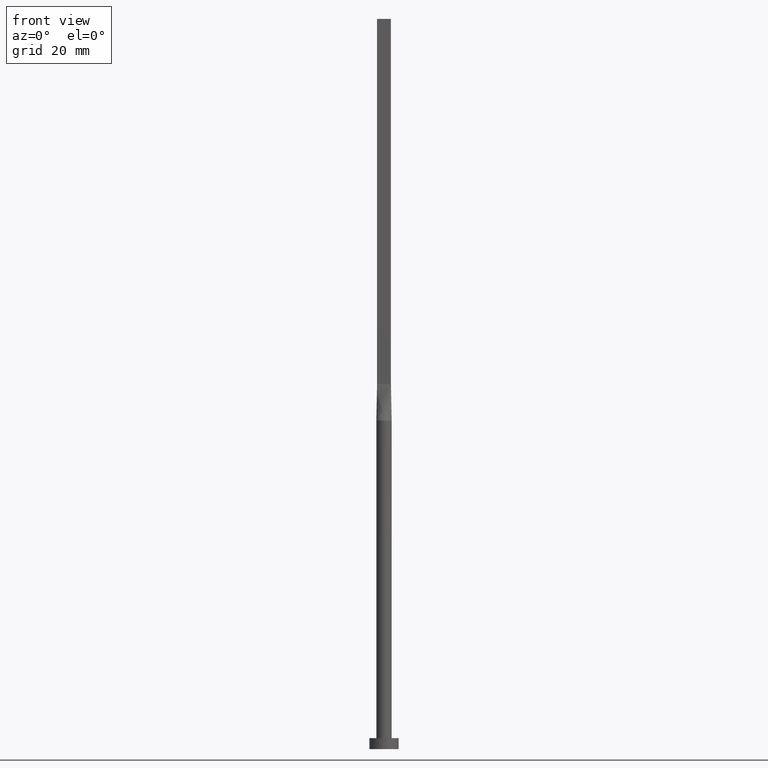
[diagram: clean part render]
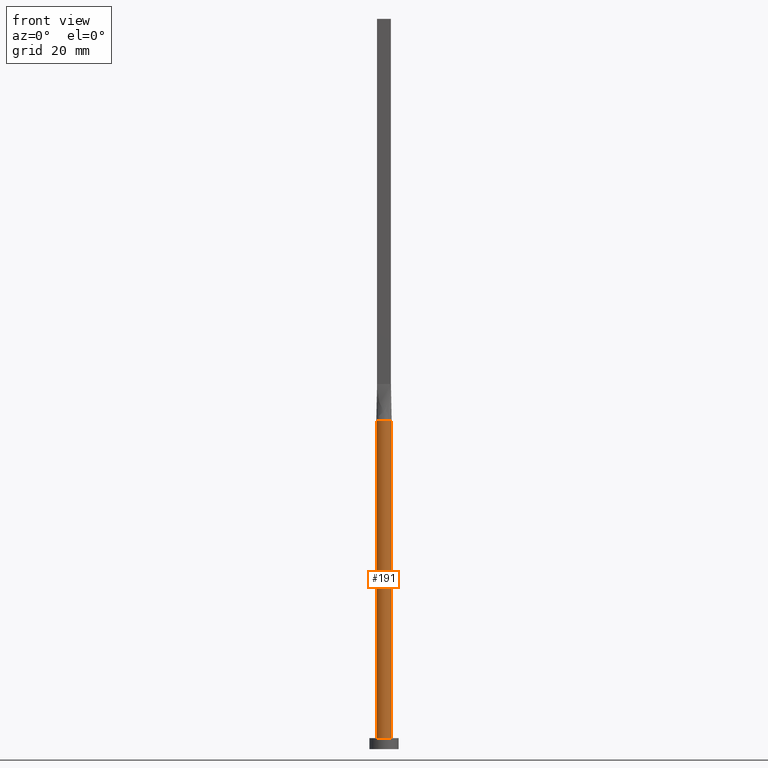
[diagram: same view with one face highlighted and labeled with its STEP entity id]
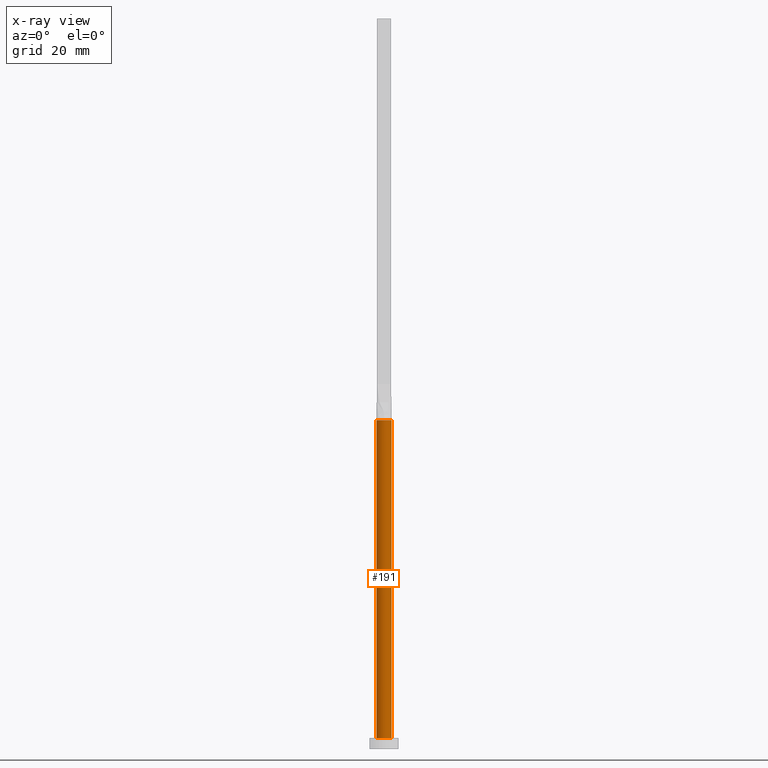
[diagram: x-ray of the same camera — body ghosted, the highlighted face saturated]
A machine part, front view. The second image highlights one B-rep face of the part: STEP entity #191.
The next image is the same camera in x-ray: the body ghosted, the highlighted face saturated — about 0% of this face is hidden behind the body in this view.
In plain terms, the highlighted cylindrical surface (edge-blend (fillet) strip) has radius 2.1 mm, axis along (-0, -0, -1).
Its self-contained STEP definition (entity closure, byte-faithful):
#18 = DIRECTION ( 'NONE',  ( -0.000000000000000000, -0.000000000000000000, -1.000000000000000000 ) ) ;
#25 = ORIENTED_EDGE ( 'NONE', *, *, #234, .F. ) ;
#29 = CIRCLE ( 'NONE', #355, 2.100000000000000089 ) ;
#42 = CARTESIAN_POINT ( 'NONE',  ( -2.100000000000000089, 0.000000000000000000, 3.000000000000000000 ) ) ;
#56 = CIRCLE ( 'NONE', #564, 2.100000000000000089 ) ;
#60 = CARTESIAN_POINT ( 'NONE',  ( 2.100000000000000089, 2.571758278209441957E-16, 3.000000000000000000 ) ) ;
#63 = EDGE_CURVE ( 'NONE', #311, #288, #158, .T. ) ;
#64 = ORIENTED_EDGE ( 'NONE', *, *, #488, .T. ) ;
#81 = DIRECTION ( 'NONE',  ( 1.000000000000000000, 0.000000000000000000, 0.000000000000000000 ) ) ;
#84 = CARTESIAN_POINT ( 'NONE',  ( 2.074492141291045755, -0.3275508996892426139, 90.00000000000000000 ) ) ;
#94 = CYLINDRICAL_SURFACE ( 'NONE', #512, 2.100000000000000089 ) ;
#100 = DIRECTION ( 'NONE',  ( 0.000000000000000000, 0.000000000000000000, 1.000000000000000000 ) ) ;
#112 = DIRECTION ( 'NONE',  ( 0.000000000000000000, 0.000000000000000000, 1.000000000000000000 ) ) ;
#142 = EDGE_LOOP ( 'NONE', ( #534, #445, #485, #25, #338, #64 ) ) ;
#149 = DIRECTION ( 'NONE',  ( 1.000000000000000000, -7.993605777301127091E-15, 0.000000000000000000 ) ) ;
#158 = LINE ( 'NONE', #247, #468 ) ;
#170 = AXIS2_PLACEMENT_3D ( 'NONE', #375, #193, #149 ) ;
#191 = ADVANCED_FACE ( 'NONE', ( #307 ), #94, .T. ) ;
#193 = DIRECTION ( 'NONE',  ( 0.000000000000000000, 0.000000000000000000, 1.000000000000000000 ) ) ;
#216 = CARTESIAN_POINT ( 'NONE',  ( 2.099921383865792635, 5.174786140116233847E-16, 90.00000000000000000 ) ) ;
#234 = EDGE_CURVE ( 'NONE', #311, #410, #56, .T. ) ;
#247 = CARTESIAN_POINT ( 'NONE',  ( -2.100000000000000089, 0.000000000000000000, 90.00000000000000000 ) ) ;
#285 = CARTESIAN_POINT ( 'NONE',  ( 0.000000000000000000, 0.000000000000000000, 90.00000000000000000 ) ) ;
#288 = VERTEX_POINT ( 'NONE', #42 ) ;
#298 = VERTEX_POINT ( 'NONE', #84 ) ;
#301 = VERTEX_POINT ( 'NONE', #216 ) ;
#307 = FACE_OUTER_BOUND ( 'NONE', #142, .T. ) ;
#311 = VERTEX_POINT ( 'NONE', #440 ) ;
#315 = CARTESIAN_POINT ( 'NONE',  ( 2.100000000000000089, 2.571758278209441957E-16, 90.00000000000000000 ) ) ;
#318 = AXIS2_PLACEMENT_3D ( 'NONE', #285, #112, #477 ) ;
#320 = DIRECTION ( 'NONE',  ( 0.000000000000000000, 0.000000000000000000, 1.000000000000000000 ) ) ;
#322 = CARTESIAN_POINT ( 'NONE',  ( 0.000000000000000000, 0.000000000000000000, 3.000000000000000000 ) ) ;
#328 = VERTEX_POINT ( 'NONE', #60 ) ;
#330 = DIRECTION ( 'NONE',  ( 1.000000000000000000, 0.000000000000000000, 0.000000000000000000 ) ) ;
#338 = ORIENTED_EDGE ( 'NONE', *, *, #63, .T. ) ;
#355 = AXIS2_PLACEMENT_3D ( 'NONE', #322, #100, #330 ) ;
#363 = DIRECTION ( 'NONE',  ( -0.000000000000000000, -0.000000000000000000, -1.000000000000000000 ) ) ;
#368 = DIRECTION ( 'NONE',  ( -1.000000000000000000, 0.000000000000000000, 0.000000000000000000 ) ) ;
#375 = CARTESIAN_POINT ( 'NONE',  ( 0.000000000000000000, 0.000000000000000000, 90.00000000000000000 ) ) ;
#394 = EDGE_CURVE ( 'NONE', #301, #328, #508, .T. ) ;
#410 = VERTEX_POINT ( 'NONE', #437 ) ;
#415 = CARTESIAN_POINT ( 'NONE',  ( 0.000000000000000000, 0.000000000000000000, 90.00000000000000000 ) ) ;
#420 = CIRCLE ( 'NONE', #170, 2.100000000000000089 ) ;
#437 = CARTESIAN_POINT ( 'NONE',  ( -2.074486960997361962, -0.3275502116714910095, 90.00000000000000000 ) ) ;
#440 = CARTESIAN_POINT ( 'NONE',  ( -2.099921383865792635, -5.254633567926592411E-16, 90.00000000000000000 ) ) ;
#445 = ORIENTED_EDGE ( 'NONE', *, *, #498, .F. ) ;
#459 = VECTOR ( 'NONE', #363, 1000.000000000000000 ) ;
#463 = EDGE_CURVE ( 'NONE', #410, #298, #536, .T. ) ;
#468 = VECTOR ( 'NONE', #575, 1000.000000000000000 ) ;
#477 = DIRECTION ( 'NONE',  ( 1.000000000000000000, 0.000000000000000000, 0.000000000000000000 ) ) ;
#485 = ORIENTED_EDGE ( 'NONE', *, *, #463, .F. ) ;
#488 = EDGE_CURVE ( 'NONE', #288, #328, #29, .T. ) ;
#498 = EDGE_CURVE ( 'NONE', #298, #301, #420, .T. ) ;
#508 = LINE ( 'NONE', #315, #459 ) ;
#512 = AXIS2_PLACEMENT_3D ( 'NONE', #415, #18, #368 ) ;
#534 = ORIENTED_EDGE ( 'NONE', *, *, #394, .F. ) ;
#535 = CARTESIAN_POINT ( 'NONE',  ( 0.000000000000000000, 0.000000000000000000, 90.00000000000000000 ) ) ;
#536 = CIRCLE ( 'NONE', #318, 2.100000000000000089 ) ;
#564 = AXIS2_PLACEMENT_3D ( 'NONE', #535, #320, #81 ) ;
#575 = DIRECTION ( 'NONE',  ( -0.000000000000000000, -0.000000000000000000, -1.000000000000000000 ) ) ;